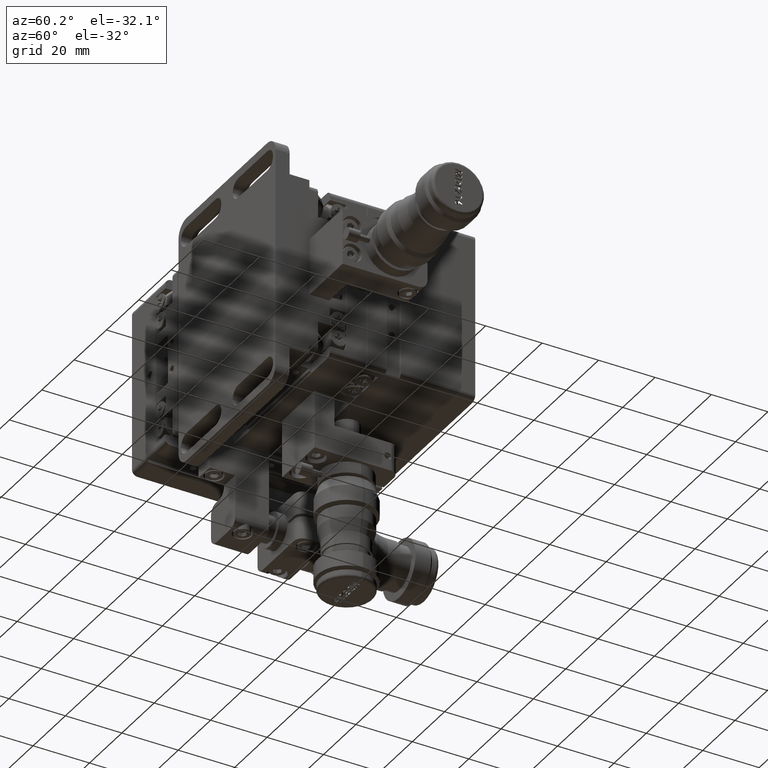
[diagram: clean part render]
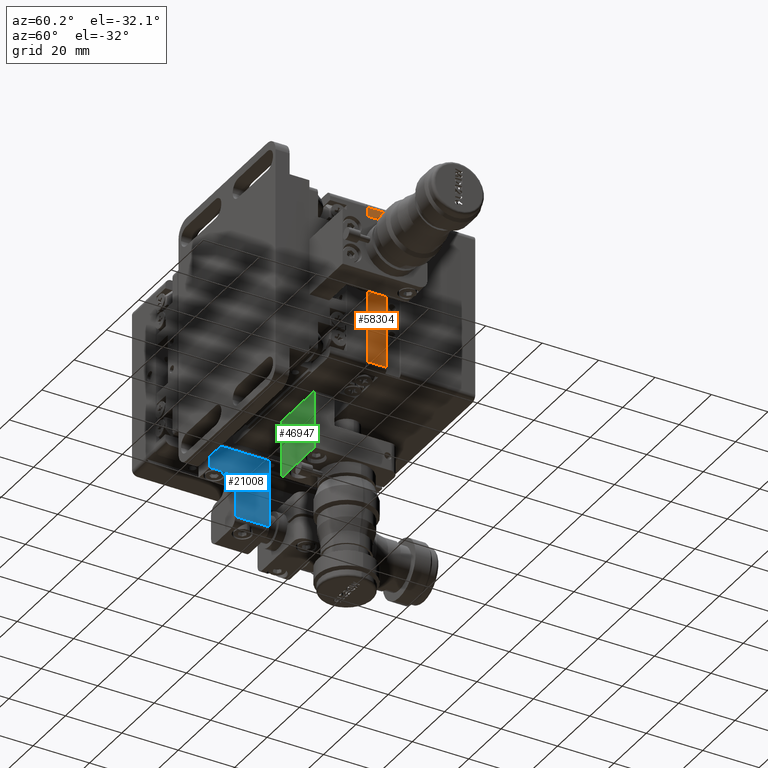
[diagram: same view with three faces highlighted in distinct colors, each labeled with its STEP entity id]
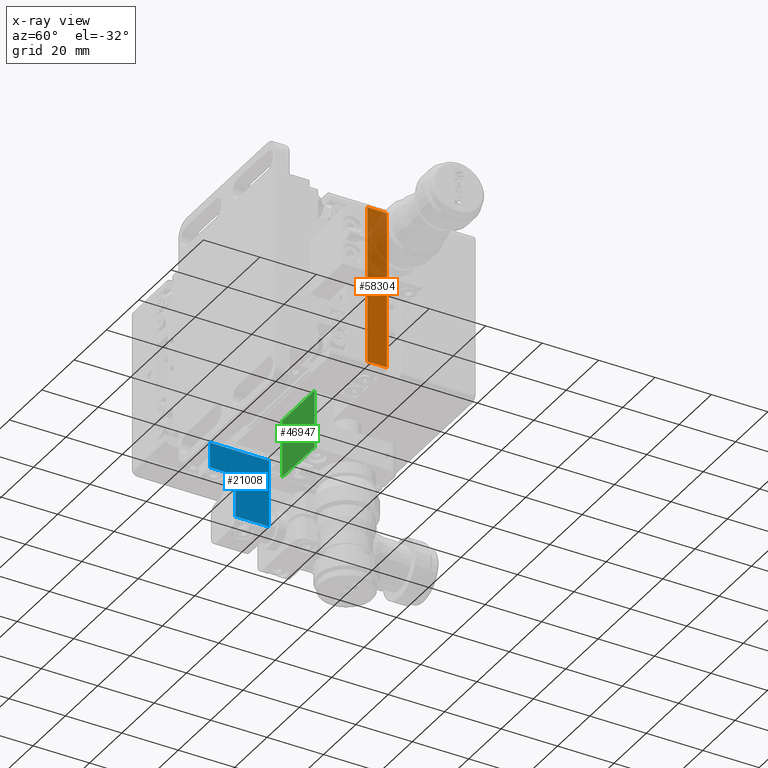
[diagram: x-ray of the same camera — body ghosted, the three highlighted faces saturated]
A machine part, auxiliary view with three faces highlighted in distinct colors.
The next image is the same camera in x-ray (body ghosted, the three faces saturated) — at least one of them is partly hidden behind the body in this view.
Their STEP definitions:

[orange] entity #58304 — the highlighted planar face has unit normal (1, -0, 0).
#1276 = VERTEX_POINT ( 'NONE', #30745 ) ;
#1967 = VECTOR ( 'NONE', #44233, 1000.000000000000000 ) ;
#3863 = CARTESIAN_POINT ( 'NONE',  ( 30.09999999999946500, 45.40000000000003400, 30.00000000000022400 ) ) ;
#4251 = DIRECTION ( 'NONE',  ( 1.974281030544033400E-016, 1.000000000000000000, 1.787762237359900100E-016 ) ) ;
#7192 = CARTESIAN_POINT ( 'NONE',  ( 30.09999999999946900, 39.40000000000004100, 28.00000000000022400 ) ) ;
#8386 = DIRECTION ( 'NONE',  ( 1.000000000000000000, -1.974281030544035900E-016, 1.330132585272058900E-015 ) ) ;
#9980 = CARTESIAN_POINT ( 'NONE',  ( 30.09999999999946500, 32.50000000000003600, 28.00000000000022000 ) ) ;
#10818 = VERTEX_POINT ( 'NONE', #9980 ) ;
#11440 = DIRECTION ( 'NONE',  ( 1.274621434040801100E-015, 2.575173222712062100E-016, -1.000000000000000000 ) ) ;
#14395 = LINE ( 'NONE', #27477, #32822 ) ;
#15966 = VECTOR ( 'NONE', #18200, 1000.000000000000000 ) ;
#17132 = EDGE_CURVE ( 'NONE', #44317, #10818, #42257, .T. ) ;
#17587 = ORIENTED_EDGE ( 'NONE', *, *, #17132, .T. ) ;
#17608 = DIRECTION ( 'NONE',  ( 1.274621434040801100E-015, 2.575173222712062100E-016, -1.000000000000000000 ) ) ;
#17958 = EDGE_CURVE ( 'NONE', #1276, #20362, #33721, .T. ) ;
#18200 = DIRECTION ( 'NONE',  ( 1.974281030544033400E-016, 1.000000000000000000, 1.787762237359900100E-016 ) ) ;
#20041 = EDGE_CURVE ( 'NONE', #44317, #20362, #14395, .T. ) ;
#20362 = VERTEX_POINT ( 'NONE', #47675 ) ;
#22150 = EDGE_LOOP ( 'NONE', ( #49284, #31561, #56351, #17587 ) ) ;
#23121 = CARTESIAN_POINT ( 'NONE',  ( 30.09999999999953600, 39.40000000000005500, -27.99999999999977300 ) ) ;
#25885 = FACE_OUTER_BOUND ( 'NONE', #22150, .T. ) ;
#27477 = CARTESIAN_POINT ( 'NONE',  ( 30.09999999999946500, 39.40000000000004100, 30.00000000000022400 ) ) ;
#30745 = CARTESIAN_POINT ( 'NONE',  ( 30.09999999999953200, 32.50000000000005000, -27.99999999999977600 ) ) ;
#31086 = PLANE ( 'NONE',  #43792 ) ;
#31561 = ORIENTED_EDGE ( 'NONE', *, *, #17958, .T. ) ;
#32822 = VECTOR ( 'NONE', #17608, 1000.000000000000000 ) ;
#33369 = EDGE_CURVE ( 'NONE', #10818, #1276, #36829, .T. ) ;
#33721 = LINE ( 'NONE', #23121, #15966 ) ;
#36829 = LINE ( 'NONE', #52116, #47436 ) ;
#42257 = LINE ( 'NONE', #48216, #1967 ) ;
#43792 = AXIS2_PLACEMENT_3D ( 'NONE', #3863, #8386, #4251 ) ;
#44233 = DIRECTION ( 'NONE',  ( -1.974281030544033400E-016, -1.000000000000000000, -1.787762237359900100E-016 ) ) ;
#44317 = VERTEX_POINT ( 'NONE', #7192 ) ;
#47436 = VECTOR ( 'NONE', #11440, 1000.000000000000000 ) ;
#47675 = CARTESIAN_POINT ( 'NONE',  ( 30.09999999999953600, 39.40000000000005500, -27.99999999999977300 ) ) ;
#48216 = CARTESIAN_POINT ( 'NONE',  ( 30.09999999999946900, 45.40000000000003400, 28.00000000000022400 ) ) ;
#49284 = ORIENTED_EDGE ( 'NONE', *, *, #33369, .T. ) ;
#52116 = CARTESIAN_POINT ( 'NONE',  ( 30.09999999999946100, 32.50000000000003600, 30.00000000000022000 ) ) ;
#56351 = ORIENTED_EDGE ( 'NONE', *, *, #20041, .F. ) ;
#58304 = ADVANCED_FACE ( 'NONE', ( #25885 ), #31086, .T. ) ;

[blue] entity #21008 — the highlighted planar face has unit normal (-1, -0, 0).
#799 = VECTOR ( 'NONE', #1241, 1000.000000000000000 ) ;
#1241 = DIRECTION ( 'NONE',  ( -2.081668171172169000E-016, 1.000000000000000000, 3.796214262583837800E-014 ) ) ;
#4004 = CARTESIAN_POINT ( 'NONE',  ( -31.90000000000055300, 33.20000000000094800, -29.99999999999728200 ) ) ;
#4935 = EDGE_CURVE ( 'NONE', #43745, #46036, #9953, .T. ) ;
#4973 = VECTOR ( 'NONE', #36553, 1000.000000000000000 ) ;
#5374 = CARTESIAN_POINT ( 'NONE',  ( -31.90000000000056000, 33.20000000000186400, -53.99999999999727900 ) ) ;
#5395 = CARTESIAN_POINT ( 'NONE',  ( -31.90000000000055300, 21.20000000000095900, -29.99999999999773700 ) ) ;
#8577 = LINE ( 'NONE', #25836, #19833 ) ;
#9313 = EDGE_CURVE ( 'NONE', #48297, #50573, #51569, .T. ) ;
#9953 = LINE ( 'NONE', #5395, #799 ) ;
#10964 = ORIENTED_EDGE ( 'NONE', *, *, #4935, .F. ) ;
#11396 = LINE ( 'NONE', #31285, #56640 ) ;
#12476 = PLANE ( 'NONE',  #16882 ) ;
#14087 = DIRECTION ( 'NONE',  ( -2.277018734544224400E-016, 3.796214262583839000E-014, -1.000000000000000000 ) ) ;
#16882 = AXIS2_PLACEMENT_3D ( 'NONE', #21562, #35035, #44105 ) ;
#19742 = VECTOR ( 'NONE', #45255, 1000.000000000000000 ) ;
#19833 = VECTOR ( 'NONE', #57269, 1000.000000000000000 ) ;
#21008 = ADVANCED_FACE ( 'NONE', ( #48355 ), #12476, .F. ) ;
#21562 = CARTESIAN_POINT ( 'NONE',  ( -31.90000000000055300, 21.20000000000095900, -29.99999999999773700 ) ) ;
#22010 = ORIENTED_EDGE ( 'NONE', *, *, #43651, .T. ) ;
#22212 = ORIENTED_EDGE ( 'NONE', *, *, #9313, .T. ) ;
#23782 = VECTOR ( 'NONE', #14087, 1000.000000000000000 ) ;
#25836 = CARTESIAN_POINT ( 'NONE',  ( -31.90000000000055300, 12.20000000000130000, -38.99999999999807400 ) ) ;
#27733 = ORIENTED_EDGE ( 'NONE', *, *, #39669, .T. ) ;
#31285 = CARTESIAN_POINT ( 'NONE',  ( -31.90000000000055300, 21.20000000000186800, -53.99999999999773300 ) ) ;
#31995 = CARTESIAN_POINT ( 'NONE',  ( -31.90000000000055300, 12.20000000000130000, -38.99999999999807400 ) ) ;
#33564 = CARTESIAN_POINT ( 'NONE',  ( -31.90000000000056000, 33.20000000000186400, -53.99999999999727900 ) ) ;
#33764 = LINE ( 'NONE', #50051, #23782 ) ;
#35035 = DIRECTION ( 'NONE',  ( -1.000000000000000000, -2.081668171172141100E-016, 2.277018734544145000E-016 ) ) ;
#35321 = CARTESIAN_POINT ( 'NONE',  ( -31.90000000000055300, 21.20000000000186800, -53.99999999999773300 ) ) ;
#36553 = DIRECTION ( 'NONE',  ( -2.081668171172169000E-016, 1.000000000000000000, 3.796214262583837800E-014 ) ) ;
#39669 = EDGE_CURVE ( 'NONE', #43974, #55141, #11396, .T. ) ;
#40457 = EDGE_CURVE ( 'NONE', #48297, #43745, #8577, .T. ) ;
#40557 = EDGE_LOOP ( 'NONE', ( #10964, #46668, #22212, #50507, #27733, #22010 ) ) ;
#43651 = EDGE_CURVE ( 'NONE', #55141, #46036, #48067, .T. ) ;
#43745 = VERTEX_POINT ( 'NONE', #55717 ) ;
#43974 = VERTEX_POINT ( 'NONE', #35321 ) ;
#44105 = DIRECTION ( 'NONE',  ( 2.277018734544223900E-016, -3.796214262583838400E-014, 1.000000000000000000 ) ) ;
#45255 = DIRECTION ( 'NONE',  ( 2.277018734544224400E-016, -3.796214262583839000E-014, 1.000000000000000000 ) ) ;
#46036 = VERTEX_POINT ( 'NONE', #4004 ) ;
#46481 = CARTESIAN_POINT ( 'NONE',  ( -31.90000000000055300, 12.20000000000130000, -38.99999999999807400 ) ) ;
#46668 = ORIENTED_EDGE ( 'NONE', *, *, #40457, .F. ) ;
#48067 = LINE ( 'NONE', #5374, #19742 ) ;
#48297 = VERTEX_POINT ( 'NONE', #46481 ) ;
#48355 = FACE_OUTER_BOUND ( 'NONE', #40557, .T. ) ;
#49636 = DIRECTION ( 'NONE',  ( -2.081668171172169000E-016, 1.000000000000000000, 3.796214262583837800E-014 ) ) ;
#50051 = CARTESIAN_POINT ( 'NONE',  ( -31.90000000000055300, 21.20000000000095900, -29.99999999999773700 ) ) ;
#50507 = ORIENTED_EDGE ( 'NONE', *, *, #58072, .T. ) ;
#50573 = VERTEX_POINT ( 'NONE', #56458 ) ;
#51569 = LINE ( 'NONE', #31995, #4973 ) ;
#55141 = VERTEX_POINT ( 'NONE', #33564 ) ;
#55717 = CARTESIAN_POINT ( 'NONE',  ( -31.90000000000055300, 12.20000000000095900, -29.99999999999808200 ) ) ;
#56458 = CARTESIAN_POINT ( 'NONE',  ( -31.90000000000055300, 21.20000000000129600, -38.99999999999774000 ) ) ;
#56640 = VECTOR ( 'NONE', #49636, 1000.000000000000000 ) ;
#57269 = DIRECTION ( 'NONE',  ( 2.999820182867893800E-016, -3.796214262583839000E-014, 1.000000000000000000 ) ) ;
#58072 = EDGE_CURVE ( 'NONE', #50573, #43974, #33764, .T. ) ;

[green] entity #46947 — the highlighted planar face has unit normal (-0, 1, -0).
#1644 = VERTEX_POINT ( 'NONE', #51817 ) ;
#1794 = VECTOR ( 'NONE', #5381, 1000.000000000000000 ) ;
#2169 = EDGE_CURVE ( 'NONE', #9040, #13279, #38450, .T. ) ;
#4866 = CARTESIAN_POINT ( 'NONE',  ( -9.900000000000501300, 25.19999999999997800, -50.49999999999976600 ) ) ;
#5381 = DIRECTION ( 'NONE',  ( 1.000000000000000000, -8.326672684688496600E-017, 7.635927962555953300E-017 ) ) ;
#7464 = EDGE_LOOP ( 'NONE', ( #41415, #14612, #39494, #49590 ) ) ;
#9040 = VERTEX_POINT ( 'NONE', #15000 ) ;
#9107 = DIRECTION ( 'NONE',  ( 1.000000000000000000, -8.326672684688496600E-017, 7.635927962555953300E-017 ) ) ;
#13279 = VERTEX_POINT ( 'NONE', #55432 ) ;
#13756 = LINE ( 'NONE', #55726, #1794 ) ;
#14612 = ORIENTED_EDGE ( 'NONE', *, *, #43564, .F. ) ;
#15000 = CARTESIAN_POINT ( 'NONE',  ( 10.09999999999949300, 25.19999999999997800, -29.99999999999978300 ) ) ;
#15761 = EDGE_CURVE ( 'NONE', #1644, #56572, #27516, .T. ) ;
#18738 = EDGE_CURVE ( 'NONE', #56572, #13279, #13756, .T. ) ;
#20372 = PLANE ( 'NONE',  #29254 ) ;
#21165 = VECTOR ( 'NONE', #9107, 1000.000000000000000 ) ;
#24913 = DIRECTION ( 'NONE',  ( 7.635927962556001400E-017, 1.553306489826233100E-016, 1.000000000000000000 ) ) ;
#26475 = FACE_OUTER_BOUND ( 'NONE', #7464, .T. ) ;
#27516 = LINE ( 'NONE', #29933, #29684 ) ;
#29254 = AXIS2_PLACEMENT_3D ( 'NONE', #43112, #34040, #24913 ) ;
#29684 = VECTOR ( 'NONE', #43200, 1000.000000000000000 ) ;
#29933 = CARTESIAN_POINT ( 'NONE',  ( -9.900000000000501300, 25.19999999999997800, -28.99999999999979000 ) ) ;
#34040 = DIRECTION ( 'NONE',  ( -8.326672684688501500E-017, 1.000000000000000000, -1.553306489826233100E-016 ) ) ;
#38450 = LINE ( 'NONE', #56317, #49033 ) ;
#38897 = LINE ( 'NONE', #40319, #21165 ) ;
#39494 = ORIENTED_EDGE ( 'NONE', *, *, #15761, .T. ) ;
#40319 = CARTESIAN_POINT ( 'NONE',  ( -14.90000000000050800, 25.19999999999997800, -29.99999999999979700 ) ) ;
#41415 = ORIENTED_EDGE ( 'NONE', *, *, #2169, .F. ) ;
#43112 = CARTESIAN_POINT ( 'NONE',  ( -9.900000000000501300, 25.19999999999997800, -28.99999999999979000 ) ) ;
#43200 = DIRECTION ( 'NONE',  ( -7.635927962556001400E-017, -1.553306489826233100E-016, -1.000000000000000000 ) ) ;
#43564 = EDGE_CURVE ( 'NONE', #1644, #9040, #38897, .T. ) ;
#46947 = ADVANCED_FACE ( 'NONE', ( #26475 ), #20372, .F. ) ;
#49033 = VECTOR ( 'NONE', #52930, 1000.000000000000000 ) ;
#49590 = ORIENTED_EDGE ( 'NONE', *, *, #18738, .T. ) ;
#51817 = CARTESIAN_POINT ( 'NONE',  ( -9.900000000000501300, 25.19999999999997800, -29.99999999999979000 ) ) ;
#52930 = DIRECTION ( 'NONE',  ( -7.635927962556001400E-017, -1.553306489826233100E-016, -1.000000000000000000 ) ) ;
#55432 = CARTESIAN_POINT ( 'NONE',  ( 10.09999999999949700, 25.19999999999997800, -50.49999999999976600 ) ) ;
#55726 = CARTESIAN_POINT ( 'NONE',  ( -9.900000000000501300, 25.19999999999997800, -50.49999999999976600 ) ) ;
#56317 = CARTESIAN_POINT ( 'NONE',  ( 10.09999999999949300, 25.19999999999997800, -28.99999999999978300 ) ) ;
#56572 = VERTEX_POINT ( 'NONE', #4866 ) ;